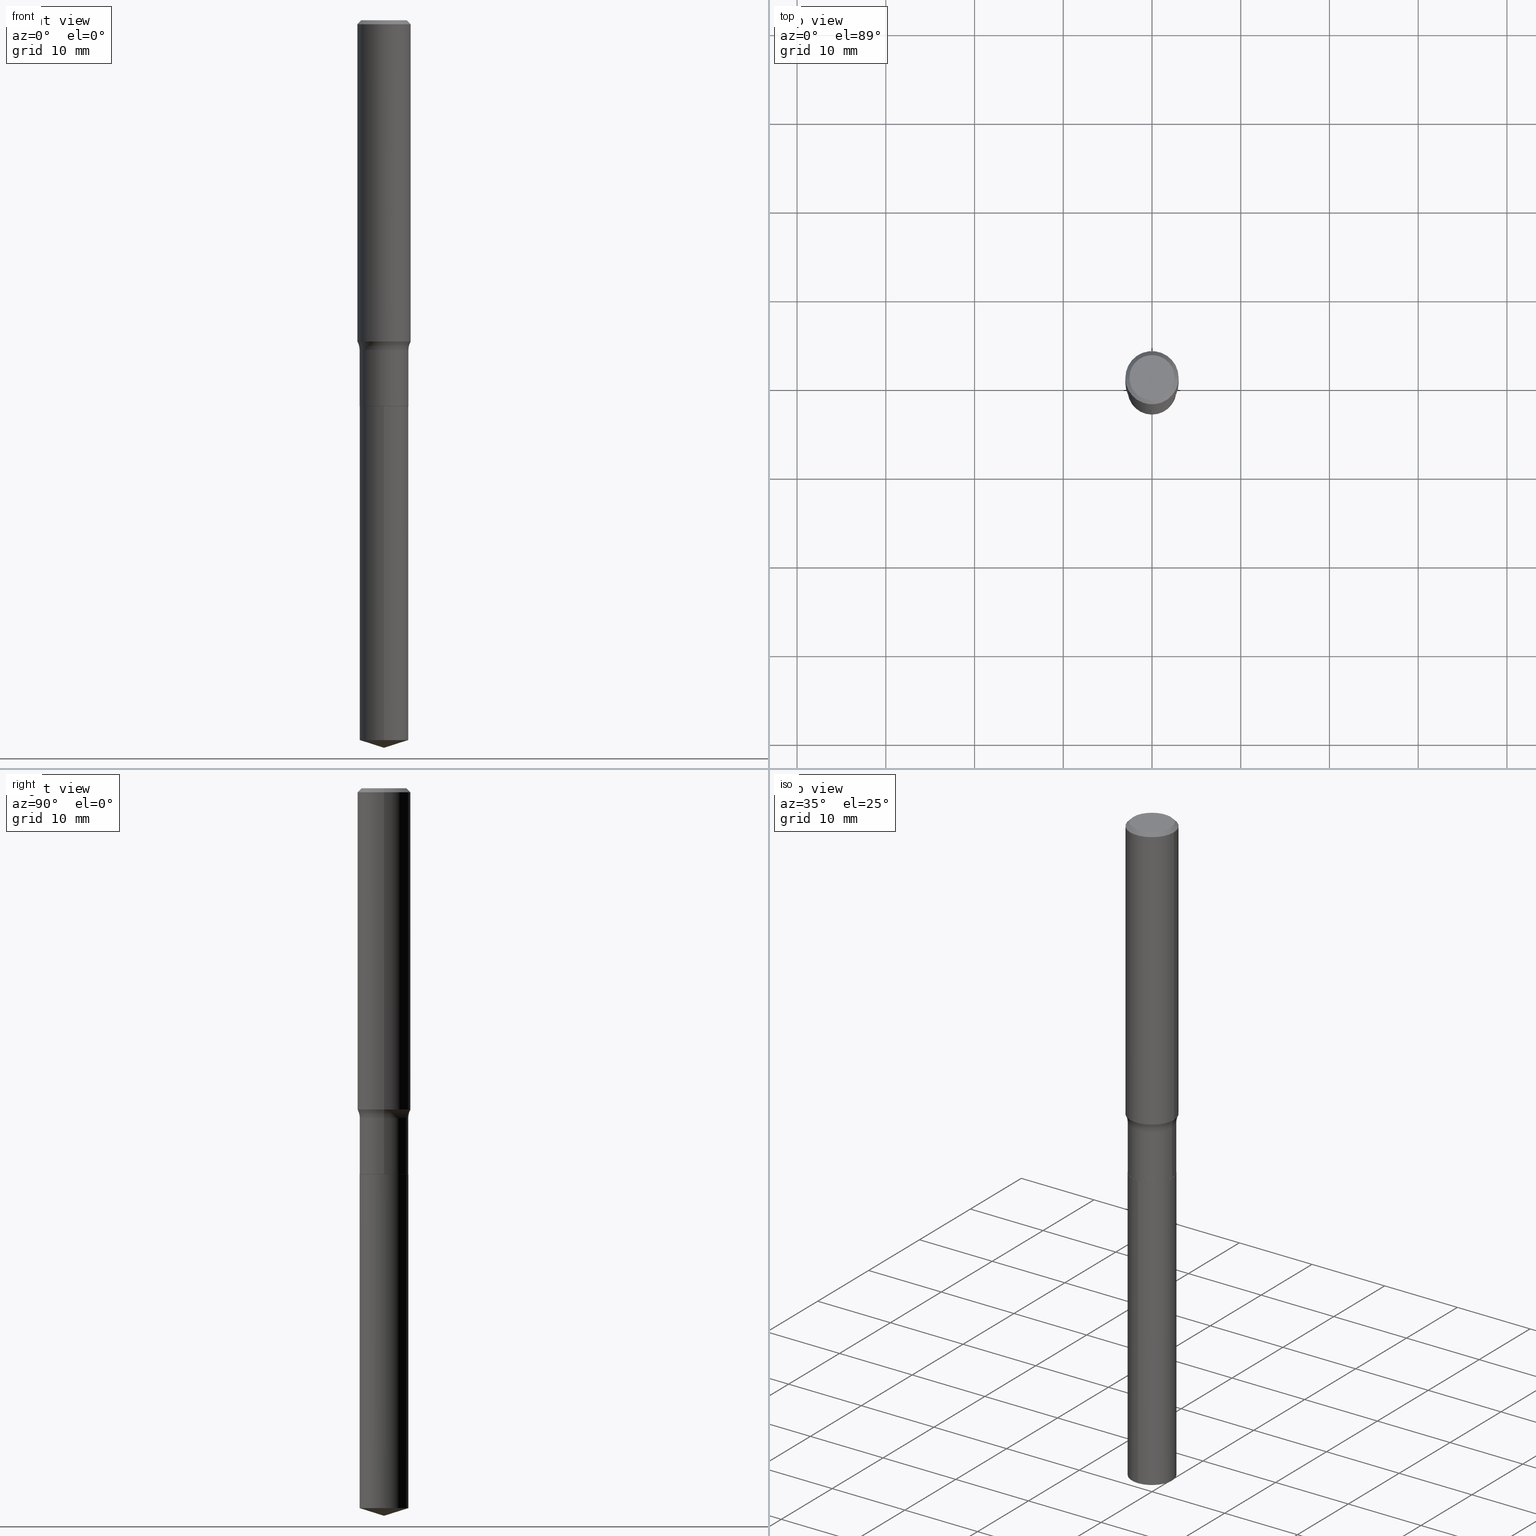
[diagram: canonical four-view strip — front | top / right | iso, engineering-drawing reading convention]
A machine part, canonical four-view strip (front | top / right | iso — engineering-drawing reading convention). The complete STEP part file that produces these views, byte-faithful:
ISO-10303-21;
HEADER;
FILE_DESCRIPTION (( 'STEP AP203' ),
    '1' );
FILE_NAME ('64126.STEP',
    '2024-04-19T15:16:53',
    ( '' ),
    ( '' ),
    'SwSTEP 2.0',
    'SolidWorks 2023',
    '' );
FILE_SCHEMA (( 'CONFIG_CONTROL_DESIGN' ));
ENDSEC;

DATA;
#1 = DIRECTION ( 'NONE',  ( -6.659769872151617100E-15, -0.9537169507482246011, 0.3007057995042806131 ) ) ;
#2 = FACE_OUTER_BOUND ( 'NONE', #188, .T. ) ;
#3 = CARTESIAN_POINT ( 'NONE',  ( 4.187865330592046870E-29, -5.979161792768887170E-15, -1.712500000000000133 ) ) ;
#4 = AXIS2_PLACEMENT_3D ( 'NONE', #20, #175, #138 ) ;
#5 = CC_DESIGN_APPROVAL ( #444, ( #358 ) ) ;
#6 = DIRECTION ( 'NONE',  ( -2.445468806185136877E-29, 3.491481338843145188E-15, 1.000000000000000000 ) ) ;
#7 = CC_DESIGN_PERSON_AND_ORGANIZATION_ASSIGNMENT ( #426, #421, ( #358 ) ) ;
#8 = ADVANCED_BREP_SHAPE_REPRESENTATION ( '64126', ( #59, #385, #286 ), #454 ) ;
#9 = ORIENTED_EDGE ( 'NONE', *, *, #132, .T. ) ;
#10 = ORIENTED_EDGE ( 'NONE', *, *, #183, .F. ) ;
#11 = ORIENTED_EDGE ( 'NONE', *, *, #423, .F. ) ;
#12 = COORDINATED_UNIVERSAL_TIME_OFFSET ( 5, 0, .BEHIND. ) ;
#13 = CARTESIAN_POINT ( 'NONE',  ( 7.894856259589702818E-29, -1.127133538207123625E-14, -3.228299999999999947 ) ) ;
#14 = CIRCLE ( 'NONE', #100, 0.1180999999999999966 ) ;
#15 = AXIS2_PLACEMENT_3D ( 'NONE', #34, #187, #227 ) ;
#16 = APPROVAL_PERSON_ORGANIZATION ( #51, #416, #21 ) ;
#17 = DIRECTION ( 'NONE',  ( 1.000000000000000000, -6.982962677686263555E-15, 0.000000000000000000 ) ) ;
#18 = CC_DESIGN_PERSON_AND_ORGANIZATION_ASSIGNMENT ( #271, #386, ( #419 ) ) ;
#19 =( NAMED_UNIT ( * ) SI_UNIT ( $, .STERADIAN. ) SOLID_ANGLE_UNIT ( ) );
#20 = CARTESIAN_POINT ( 'NONE',  ( 4.187865330592046870E-29, -5.979161792768887170E-15, -1.712500000000000133 ) ) ;
#21 = APPROVAL_ROLE ( '' ) ;
#22 = ORIENTED_EDGE ( 'NONE', *, *, #383, .T. ) ;
#23 = ADVANCED_FACE ( 'NONE', ( #465 ), #90, .T. ) ;
#24 = AXIS2_PLACEMENT_3D ( 'NONE', #110, #434, #56 ) ;
#25 = EDGE_CURVE ( 'NONE', #366, #220, #274, .T. ) ;
#26 = ORIENTED_EDGE ( 'NONE', *, *, #368, .T. ) ;
#27 = ORIENTED_EDGE ( 'NONE', *, *, #362, .T. ) ;
#28 = CARTESIAN_POINT ( 'NONE',  ( 0.1082499999999999712, -5.865688649256482338E-15, -1.463500000000000023 ) ) ;
#29 = DIRECTION ( 'NONE',  ( -2.445468806185136597E-29, 3.491481338843145583E-15, 1.000000000000000000 ) ) ;
#30 = AXIS2_PLACEMENT_3D ( 'NONE', #268, #409, #186 ) ;
#31 = ORIENTED_EDGE ( 'NONE', *, *, #137, .F. ) ;
#32 = COORDINATED_UNIVERSAL_TIME_OFFSET ( 5, 0, .BEHIND. ) ;
#33 = PLANE ( 'NONE',  #208 ) ;
#34 = CARTESIAN_POINT ( 'NONE',  ( 0.000000000000000000, 0.000000000000000000, 0.000000000000000000 ) ) ;
#35 = EDGE_CURVE ( 'NONE', #140, #96, #85, .T. ) ;
#36 = VECTOR ( 'NONE', #403, 39.37007874015748143 ) ;
#37 = CARTESIAN_POINT ( 'NONE',  ( 0.000000000000000000, 0.000000000000000000, 0.000000000000000000 ) ) ;
#38 = DIRECTION ( 'NONE',  ( -2.445468806185136597E-29, 3.491481338843145583E-15, 1.000000000000000000 ) ) ;
#39 = DIRECTION ( 'NONE',  ( -2.445468806185136597E-29, 3.491481338843145583E-15, 1.000000000000000000 ) ) ;
#40 = FACE_OUTER_BOUND ( 'NONE', #399, .T. ) ;
#41 = ADVANCED_FACE ( 'NONE', ( #238 ), #130, .T. ) ;
#42 = DIRECTION ( 'NONE',  ( 1.000000000000000000, -6.982962677686263555E-15, 0.000000000000000000 ) ) ;
#43 = PRODUCT_DEFINITION_SHAPE ( 'NONE', 'NONE',  #164 ) ;
#44 = FACE_OUTER_BOUND ( 'NONE', #296, .T. ) ;
#45 = AXIS2_PLACEMENT_3D ( 'NONE', #202, #48, #314 ) ;
#46 = VECTOR ( 'NONE', #393, 39.37007874015748143 ) ;
#47 = PERSON_AND_ORGANIZATION ( #254, #122 ) ;
#48 = DIRECTION ( 'NONE',  ( -2.445515057333488882E-29, 3.491415104566253051E-15, 1.000000000000000000 ) ) ;
#49 = APPLICATION_PROTOCOL_DEFINITION ( 'international standard', 'config_control_design', 1994, #328 ) ;
#50 = DIRECTION ( 'NONE',  ( -1.000000000000000000, 6.982962677686265922E-15, -4.876176775795935793E-29 ) ) ;
#51 = PERSON_AND_ORGANIZATION ( #254, #122 ) ;
#52 = ADVANCED_FACE ( 'NONE', ( #240 ), #168, .F. ) ;
#53 = CARTESIAN_POINT ( 'NONE',  ( 4.187865330592046870E-29, -5.979161792768887170E-15, -1.712500000000000133 ) ) ;
#54 = AXIS2_PLACEMENT_3D ( 'NONE', #295, #113, #181 ) ;
#55 = APPROVAL_DATE_TIME ( #176, #416 ) ;
#56 = DIRECTION ( 'NONE',  ( 1.000000000000000000, -6.982962677686268288E-15, 4.883557194083113462E-29 ) ) ;
#57 =( NAMED_UNIT ( * ) PLANE_ANGLE_UNIT ( ) SI_UNIT ( $, .RADIAN. ) );
#58 = ORIENTED_EDGE ( 'NONE', *, *, #491, .F. ) ;
#59 = MANIFOLD_SOLID_BREP ( 'Body-Move/Copy2[1]', #333 ) ;
#60 = EDGE_CURVE ( 'NONE', #94, #466, #343, .T. ) ;
#61 = ORIENTED_EDGE ( 'NONE', *, *, #84, .F. ) ;
#62 = ADVANCED_FACE ( 'NONE', ( #128 ), #157, .F. ) ;
#63 = ORIENTED_EDGE ( 'NONE', *, *, #308, .T. ) ;
#64 = ORIENTED_EDGE ( 'NONE', *, *, #114, .T. ) ;
#65 = SHAPE_DEFINITION_REPRESENTATION ( #43, #8 ) ;
#66 = AXIS2_PLACEMENT_3D ( 'NONE', #3, #160, #272 ) ;
#67 = AXIS2_PLACEMENT_3D ( 'NONE', #155, #418, #191 ) ;
#68 = ORIENTED_EDGE ( 'NONE', *, *, #60, .F. ) ;
#69 = ORIENTED_EDGE ( 'NONE', *, *, #369, .T. ) ;
#70 = DIRECTION ( 'NONE',  ( 2.445468806185136597E-29, -3.491481338843145583E-15, -1.000000000000000000 ) ) ;
#71 = CALENDAR_DATE ( 2024, 19, 4 ) ;
#72 = DIRECTION ( 'NONE',  ( 1.000000000000000000, -6.982962677686263555E-15, 0.000000000000000000 ) ) ;
#73 = CALENDAR_DATE ( 2024, 19, 4 ) ;
#74 = DIRECTION ( 'NONE',  ( -1.000000000000000000, 7.105427357601001859E-15, 0.000000000000000000 ) ) ;
#75 = AXIS2_PLACEMENT_3D ( 'NONE', #376, #79, #492 ) ;
#76 = ORIENTED_EDGE ( 'NONE', *, *, #478, .F. ) ;
#77 = CYLINDRICAL_SURFACE ( 'NONE', #15, 0.1082499999999999851 ) ;
#78 = CC_DESIGN_PERSON_AND_ORGANIZATION_ASSIGNMENT ( #47, #201, ( #358 ) ) ;
#79 = DIRECTION ( 'NONE',  ( -2.445468806185136597E-29, 3.491481338843145583E-15, 1.000000000000000000 ) ) ;
#80 = CARTESIAN_POINT ( 'NONE',  ( 0.1180999999999999966, -8.865394841523547570E-16, -0.01771500000000010913 ) ) ;
#81 = AXIS2_PLACEMENT_3D ( 'NONE', #367, #70, #252 ) ;
#82 = LOCAL_TIME ( 11, 16, 53.00000000000000000, #32 ) ;
#83 = CARTESIAN_POINT ( 'NONE',  ( 7.811308950451849995E-29, -1.115228299150602313E-14, -3.194168906103849626 ) ) ;
#84 = EDGE_CURVE ( 'NONE', #162, #96, #112, .T. ) ;
#85 = LINE ( 'NONE', #192, #152 ) ;
#86 = APPLICATION_CONTEXT ( 'configuration controlled 3d designs of mechanical parts and assemblies' ) ;
#87 = CYLINDRICAL_SURFACE ( 'NONE', #91, 0.1082499999999999851 ) ;
#88 = DIRECTION ( 'NONE',  ( 1.000000000000000000, -6.982962677686266711E-15, 4.875668750515086816E-29 ) ) ;
#89 = DIRECTION ( 'NONE',  ( -2.445468806185136877E-29, 3.491481338843145188E-15, 1.000000000000000000 ) ) ;
#90 = CYLINDRICAL_SURFACE ( 'NONE', #120, 0.1082499999999999990 ) ;
#91 = AXIS2_PLACEMENT_3D ( 'NONE', #37, #342, #233 ) ;
#92 = SECURITY_CLASSIFICATION ( '', '', #344 ) ;
#93 = CALENDAR_DATE ( 2024, 19, 4 ) ;
#94 = VERTEX_POINT ( 'NONE', #13 ) ;
#95 = ADVANCED_FACE ( 'NONE', ( #44 ), #270, .T. ) ;
#96 = VERTEX_POINT ( 'NONE', #420 ) ;
#97 = DIRECTION ( 'NONE',  ( 0.000000000000000000, 0.000000000000000000, 1.000000000000000000 ) ) ;
#98 = ORIENTED_EDGE ( 'NONE', *, *, #262, .T. ) ;
#99 = DIRECTION ( 'NONE',  ( -6.982962677686265922E-15, -1.000000000000000000, 3.500519750498790812E-15 ) ) ;
#100 = AXIS2_PLACEMENT_3D ( 'NONE', #199, #345, #422 ) ;
#101 = CIRCLE ( 'NONE', #480, 0.1082499999999999990 ) ;
#102 = APPROVAL_DATE_TIME ( #245, #444 ) ;
#103 = EDGE_CURVE ( 'NONE', #322, #417, #340, .T. ) ;
#104 = ORIENTED_EDGE ( 'NONE', *, *, #237, .T. ) ;
#105 = EDGE_LOOP ( 'NONE', ( #64, #250 ) ) ;
#106 = CARTESIAN_POINT ( 'NONE',  ( -0.1077499999999999986, -5.210902767813268719E-15, -1.712500000000000133 ) ) ;
#107 = DIRECTION ( 'NONE',  ( -2.445515057333488882E-29, 3.491415104566253051E-15, 1.000000000000000000 ) ) ;
#108 = ADVANCED_FACE ( 'NONE', ( #40 ), #488, .T. ) ;
#109 = ORIENTED_EDGE ( 'NONE', *, *, #25, .T. ) ;
#110 = CARTESIAN_POINT ( 'NONE',  ( 3.578943597851947764E-29, -5.109782939396944472E-15, -1.463500000000000023 ) ) ;
#111 = ORIENTED_EDGE ( 'NONE', *, *, #315, .F. ) ;
#112 = CIRCLE ( 'NONE', #474, 0.1082499999999999990 ) ;
#113 = DIRECTION ( 'NONE',  ( -2.445468806185136597E-29, 3.491481338843145583E-15, 1.000000000000000000 ) ) ;
#114 = EDGE_CURVE ( 'NONE', #395, #219, #437, .T. ) ;
#115 = ORIENTED_EDGE ( 'NONE', *, *, #288, .T. ) ;
#116 = LINE ( 'NONE', #487, #439 ) ;
#117 = LINE ( 'NONE', #196, #372 ) ;
#118 = ORIENTED_EDGE ( 'NONE', *, *, #103, .F. ) ;
#119 = DIRECTION ( 'NONE',  ( -6.982962677686265922E-15, -1.000000000000000000, 5.047294214622195629E-15 ) ) ;
#120 = AXIS2_PLACEMENT_3D ( 'NONE', #311, #462, #428 ) ;
#121 = CONICAL_SURFACE ( 'NONE', #139, 124.8659371009119781, 1.265363707695884576 ) ;
#122 = ORGANIZATION ( 'UNSPECIFIED', 'UNSPECIFIED', '' ) ;
#123 = CARTESIAN_POINT ( 'NONE',  ( 4.187865330592046870E-29, -5.979161792768887170E-15, -1.712500000000000133 ) ) ;
#124 = DIRECTION ( 'NONE',  ( 1.000000000000000000, -6.982962677686266711E-15, 4.876176775795936353E-29 ) ) ;
#125 = ORIENTED_EDGE ( 'NONE', *, *, #84, .T. ) ;
#126 = DIRECTION ( 'NONE',  ( -2.445468806185136597E-29, 3.491481338843145583E-15, 1.000000000000000000 ) ) ;
#127 = MECHANICAL_CONTEXT ( 'NONE', #86, 'mechanical' ) ;
#128 = FACE_OUTER_BOUND ( 'NONE', #105, .T. ) ;
#129 =( LENGTH_UNIT ( ) NAMED_UNIT ( * ) SI_UNIT ( $, .METRE. ) );
#130 = CYLINDRICAL_SURFACE ( 'NONE', #389, 0.1181000000000000799 ) ;
#131 = AXIS2_PLACEMENT_3D ( 'NONE', #53, #207, #17 ) ;
#132 = EDGE_CURVE ( 'NONE', #220, #366, #14, .T. ) ;
#133 = ORIENTED_EDGE ( 'NONE', *, *, #25, .F. ) ;
#134 = CARTESIAN_POINT ( 'NONE',  ( 0.000000000000000000, 0.000000000000000000, 0.000000000000000000 ) ) ;
#135 = CARTESIAN_POINT ( 'NONE',  ( -0.1082499999999999712, -4.774436984287896921E-15, -1.463500000000000023 ) ) ;
#136 = PERSON_AND_ORGANIZATION ( #254, #122 ) ;
#137 = EDGE_CURVE ( 'NONE', #470, #404, #291, .T. ) ;
#138 = DIRECTION ( 'NONE',  ( -6.982962677686265922E-15, -1.000000000000000000, 2.523647107311097814E-15 ) ) ;
#139 = AXIS2_PLACEMENT_3D ( 'NONE', #330, #230, #302 ) ;
#140 = VERTEX_POINT ( 'NONE', #244 ) ;
#141 = ORIENTED_EDGE ( 'NONE', *, *, #262, .F. ) ;
#142 = ORIENTED_EDGE ( 'NONE', *, *, #383, .F. ) ;
#143 = ADVANCED_FACE ( 'NONE', ( #226 ), #206, .F. ) ;
#144 = APPROVAL_STATUS ( 'not_yet_approved' ) ;
#145 = AXIS2_PLACEMENT_3D ( 'NONE', #306, #452, #50 ) ;
#146 = AXIS2_PLACEMENT_3D ( 'NONE', #222, #317, #184 ) ;
#147 = CYLINDRICAL_SURFACE ( 'NONE', #209, 0.1181000000000000799 ) ;
#148 = DIRECTION ( 'NONE',  ( -6.982962677686265922E-15, -1.000000000000000000, 5.047294214622195629E-15 ) ) ;
#149 = ORIENTED_EDGE ( 'NONE', *, *, #369, .F. ) ;
#150 = CARTESIAN_POINT ( 'NONE',  ( -0.1180999999999999966, -1.680429813214882523E-15, -0.01771500000000010913 ) ) ;
#151 = APPROVAL ( #144, 'UNSPECIFIED' ) ;
#152 = VECTOR ( 'NONE', #377, 39.37007874015748143 ) ;
#153 = DIRECTION ( 'NONE',  ( -2.445468806185136877E-29, 3.491481338843145188E-15, 1.000000000000000000 ) ) ;
#154 = CIRCLE ( 'NONE', #258, 0.1181000000000001632 ) ;
#155 = CARTESIAN_POINT ( 'NONE',  ( 0.1862499999999999711, -6.410359738116011173E-15, -1.463500000000000023 ) ) ;
#156 = FACE_OUTER_BOUND ( 'NONE', #396, .T. ) ;
#157 = PLANE ( 'NONE',  #145 ) ;
#158 = DIRECTION ( 'NONE',  ( -2.438088387897960049E-29, 3.491481338843145188E-15, 1.000000000000000000 ) ) ;
#159 = AXIS2_PLACEMENT_3D ( 'NONE', #171, #471, #297 ) ;
#160 = DIRECTION ( 'NONE',  ( -2.445468806185136597E-29, 3.491481338843145583E-15, 1.000000000000000000 ) ) ;
#161 = CARTESIAN_POINT ( 'NONE',  ( -0.1003850000000000020, 7.319105043583386689E-16, -1.229361689324571704E-17 ) ) ;
#162 = VERTEX_POINT ( 'NONE', #364 ) ;
#163 = PERSON_AND_ORGANIZATION ( #254, #122 ) ;
#164 = PRODUCT_DEFINITION ( 'UNKNOWN', '', #358, #354 ) ;
#165 = ORIENTED_EDGE ( 'NONE', *, *, #190, .F. ) ;
#166 = LINE ( 'NONE', #213, #293 ) ;
#167 = CARTESIAN_POINT ( 'NONE',  ( 4.332147990156996744E-31, -6.185159191760670395E-17, -0.01771500000000010913 ) ) ;
#168 = TOROIDAL_SURFACE ( 'NONE', #424, 0.1862499999999999711, 0.07799999999999995826 ) ;
#169 = CIRCLE ( 'NONE', #334, 0.1082499999999999990 ) ;
#170 = DIRECTION ( 'NONE',  ( 1.000000000000000000, -6.982962677686269077E-15, 0.000000000000000000 ) ) ;
#171 = CARTESIAN_POINT ( 'NONE',  ( 4.187865330592046870E-29, -5.979161792768887170E-15, -1.712500000000000133 ) ) ;
#172 = PERSON_AND_ORGANIZATION_ROLE ( 'creator' ) ;
#173 = ORIENTED_EDGE ( 'NONE', *, *, #200, .T. ) ;
#174 = EDGE_LOOP ( 'NONE', ( #11, #355, #407, #9 ) ) ;
#175 = DIRECTION ( 'NONE',  ( -2.445515057333488882E-29, 3.491415104566253051E-15, 1.000000000000000000 ) ) ;
#176 = DATE_AND_TIME ( #388, #259 ) ;
#177 = AXIS2_PLACEMENT_3D ( 'NONE', #430, #253, #74 ) ;
#178 = ADVANCED_FACE ( 'NONE', ( #256 ), #300, .F. ) ;
#179 = DIRECTION ( 'NONE',  ( -2.445468806185136597E-29, 3.491481338843145583E-15, 1.000000000000000000 ) ) ;
#180 = VERTEX_POINT ( 'NONE', #106 ) ;
#181 = DIRECTION ( 'NONE',  ( 1.000000000000000000, -6.982962677686269077E-15, 0.000000000000000000 ) ) ;
#182 = EDGE_LOOP ( 'NONE', ( #397, #27, #133, #76 ) ) ;
#183 = EDGE_CURVE ( 'NONE', #404, #470, #154, .T. ) ;
#184 = DIRECTION ( 'NONE',  ( 1.000000000000000000, -6.982962677686263555E-15, 0.000000000000000000 ) ) ;
#185 = ORIENTED_EDGE ( 'NONE', *, *, #423, .T. ) ;
#186 = DIRECTION ( 'NONE',  ( -1.000000000000000000, 6.982962677686266711E-15, 0.000000000000000000 ) ) ;
#187 = DIRECTION ( 'NONE',  ( -2.445468806185136597E-29, 3.491481338843145583E-15, 1.000000000000000000 ) ) ;
#188 = EDGE_LOOP ( 'NONE', ( #433, #485 ) ) ;
#189 = LOCAL_TIME ( 11, 16, 53.00000000000000000, #12 ) ;
#190 = EDGE_CURVE ( 'NONE', #404, #290, #365, .T. ) ;
#191 = DIRECTION ( 'NONE',  ( 1.000000000000000000, -6.982962677686261977E-15, 0.000000000000000000 ) ) ;
#192 = CARTESIAN_POINT ( 'NONE',  ( 7.691625114603501551E-16, 0.1082499999999940177, -1.712500000000000355 ) ) ;
#193 = ADVANCED_FACE ( 'NONE', ( #405 ), #425, .T. ) ;
#194 = CARTESIAN_POINT ( 'NONE',  ( 7.894857648660020838E-29, -1.127133538207123467E-14, -3.228299999999999947 ) ) ;
#195 = DIRECTION ( 'NONE',  ( -2.445468806185136597E-29, 3.491481338843145583E-15, 1.000000000000000000 ) ) ;
#196 = CARTESIAN_POINT ( 'NONE',  ( 0.1082499999999999851, -7.559057098595382610E-16, 5.278461359799099291E-30 ) ) ;
#197 = AXIS2_PLACEMENT_3D ( 'NONE', #167, #195, #236 ) ;
#198 = CONICAL_SURFACE ( 'NONE', #413, 0.1077499999999999986, 0.7853981633975507526 ) ;
#199 = CARTESIAN_POINT ( 'NONE',  ( 4.332147990156996744E-31, -6.185159191760670395E-17, -0.01771500000000010913 ) ) ;
#200 = EDGE_CURVE ( 'NONE', #180, #322, #432, .T. ) ;
#201 = PERSON_AND_ORGANIZATION_ROLE ( 'design_supplier' ) ;
#202 = CARTESIAN_POINT ( 'NONE',  ( 4.187865330592046870E-29, -5.979161792768887170E-15, -1.712500000000000133 ) ) ;
#203 = APPROVAL_STATUS ( 'not_yet_approved' ) ;
#204 = DIRECTION ( 'NONE',  ( -2.445515057333488882E-29, 3.491415104566253051E-15, 1.000000000000000000 ) ) ;
#205 = CARTESIAN_POINT ( 'NONE',  ( 3.578943597851947764E-29, -5.109782939396944472E-15, -1.463500000000000023 ) ) ;
#206 = TOROIDAL_SURFACE ( 'NONE', #24, 0.1862499999999999711, 0.07799999999999995826 ) ;
#207 = DIRECTION ( 'NONE',  ( -2.445468806185136597E-29, 3.491481338843145583E-15, 1.000000000000000000 ) ) ;
#208 = AXIS2_PLACEMENT_3D ( 'NONE', #335, #158, #228 ) ;
#209 = AXIS2_PLACEMENT_3D ( 'NONE', #260, #374, #124 ) ;
#210 = CALENDAR_DATE ( 2024, 19, 4 ) ;
#211 = ORIENTED_EDGE ( 'NONE', *, *, #232, .F. ) ;
#212 = CARTESIAN_POINT ( 'NONE',  ( 4.186642596188954069E-29, -5.977416052099465667E-15, -1.712000000000000188 ) ) ;
#213 = CARTESIAN_POINT ( 'NONE',  ( 0.1181000000000000799, -8.246878922347486570E-16, 5.758764772215004644E-30 ) ) ;
#214 = EDGE_LOOP ( 'NONE', ( #363, #104, #69, #141 ) ) ;
#215 = AXIS2_PLACEMENT_3D ( 'NONE', #329, #284, #99 ) ;
#216 = CC_DESIGN_APPROVAL ( #151, ( #92 ) ) ;
#217 = ADVANCED_FACE ( 'NONE', ( #350 ), #349, .T. ) ;
#218 = CARTESIAN_POINT ( 'NONE',  ( 4.186642596188954069E-29, -5.977416052099465667E-15, -1.712000000000000188 ) ) ;
#219 = VERTEX_POINT ( 'NONE', #486 ) ;
#220 = VERTEX_POINT ( 'NONE', #150 ) ;
#221 = APPROVAL_DATE_TIME ( #482, #151 ) ;
#222 = CARTESIAN_POINT ( 'NONE',  ( 4.187865330592046870E-29, -5.979161792768887170E-15, -1.712500000000000133 ) ) ;
#223 = ORIENTED_EDGE ( 'NONE', *, *, #224, .F. ) ;
#224 = EDGE_CURVE ( 'NONE', #180, #246, #446, .T. ) ;
#225 = DATE_AND_TIME ( #73, #189 ) ;
#226 = FACE_OUTER_BOUND ( 'NONE', #445, .T. ) ;
#227 = DIRECTION ( 'NONE',  ( 1.000000000000000000, -6.982962677686266711E-15, 4.876176775795935232E-29 ) ) ;
#228 = DIRECTION ( 'NONE',  ( 1.000000000000000000, -6.982962677686265922E-15, 4.876176775795935793E-29 ) ) ;
#229 = AXIS2_PLACEMENT_3D ( 'NONE', #309, #126, #88 ) ;
#230 = DIRECTION ( 'NONE',  ( -2.445515057333488882E-29, 3.491415104566253051E-15, 1.000000000000000000 ) ) ;
#231 = CC_DESIGN_APPROVAL ( #416, ( #164 ) ) ;
#232 = EDGE_CURVE ( 'NONE', #96, #162, #275, .T. ) ;
#233 = DIRECTION ( 'NONE',  ( 1.000000000000000000, -6.982962677686266711E-15, 4.876176775795935232E-29 ) ) ;
#234 = DIRECTION ( 'NONE',  ( -6.982962677686265922E-15, -1.000000000000000000, 2.523647107311097814E-15 ) ) ;
#235 = LINE ( 'NONE', #337, #321 ) ;
#236 = DIRECTION ( 'NONE',  ( 1.000000000000000000, -6.982962677686266711E-15, 0.000000000000000000 ) ) ;
#237 = EDGE_CURVE ( 'NONE', #246, #417, #379, .T. ) ;
#238 = FACE_OUTER_BOUND ( 'NONE', #442, .T. ) ;
#239 = PERSON_AND_ORGANIZATION_ROLE ( 'classification_officer' ) ;
#240 = FACE_OUTER_BOUND ( 'NONE', #278, .T. ) ;
#241 = CARTESIAN_POINT ( 'NONE',  ( 0.000000000000000000, 0.000000000000000000, 0.000000000000000000 ) ) ;
#242 = APPROVAL_STATUS ( 'not_yet_approved' ) ;
#243 = ORIENTED_EDGE ( 'NONE', *, *, #35, .T. ) ;
#244 = CARTESIAN_POINT ( 'NONE',  ( 7.691625114603868372E-16, 0.1082499999999888829, -3.194168906103850070 ) ) ;
#245 = DATE_AND_TIME ( #93, #276 ) ;
#246 = VERTEX_POINT ( 'NONE', #318 ) ;
#247 = ORIENTED_EDGE ( 'NONE', *, *, #237, .F. ) ;
#248 = EDGE_CURVE ( 'NONE', #466, #140, #101, .T. ) ;
#249 = EDGE_LOOP ( 'NONE', ( #111, #185, #109, #289 ) ) ;
#250 = ORIENTED_EDGE ( 'NONE', *, *, #315, .T. ) ;
#251 = CONICAL_SURFACE ( 'NONE', #30, 0.1180999999999999966, 0.7853981633974456145 ) ;
#252 = DIRECTION ( 'NONE',  ( -1.000000000000000000, 6.982962677686266711E-15, 0.000000000000000000 ) ) ;
#253 = DIRECTION ( 'NONE',  ( 7.105427357601001859E-15, 1.000000000000000000, -3.491481338843145583E-15 ) ) ;
#254 = PERSON ( 'UNSPECIFIED', 'UNSPECIFIED', 'UNSPECIFIED', ('UNSPECIFIED'), ('UNSPECIFIED'), ('UNSPECIFIED') ) ;
#255 = EDGE_LOOP ( 'NONE', ( #323, #477, #58, #149 ) ) ;
#256 = FACE_OUTER_BOUND ( 'NONE', #336, .T. ) ;
#257 = EDGE_LOOP ( 'NONE', ( #267, #402, #142 ) ) ;
#258 = AXIS2_PLACEMENT_3D ( 'NONE', #281, #179, #352 ) ;
#259 = LOCAL_TIME ( 11, 16, 53.00000000000000000, #346 ) ;
#260 = CARTESIAN_POINT ( 'NONE',  ( 0.000000000000000000, 0.000000000000000000, 0.000000000000000000 ) ) ;
#261 = LINE ( 'NONE', #194, #463 ) ;
#262 = EDGE_CURVE ( 'NONE', #290, #292, #264, .T. ) ;
#263 = LINE ( 'NONE', #415, #398 ) ;
#264 = CIRCLE ( 'NONE', #54, 0.1082499999999999712 ) ;
#265 = DIRECTION ( 'NONE',  ( -0.7071067811865455743, 2.468850131082236945E-15, -0.7071067811865493491 ) ) ;
#266 = ORIENTED_EDGE ( 'NONE', *, *, #190, .T. ) ;
#267 = ORIENTED_EDGE ( 'NONE', *, *, #308, .F. ) ;
#268 = CARTESIAN_POINT ( 'NONE',  ( 4.332147990156996744E-31, -6.185159191760670395E-17, -0.01771500000000010913 ) ) ;
#269 = EDGE_CURVE ( 'NONE', #417, #246, #301, .T. ) ;
#270 = CYLINDRICAL_SURFACE ( 'NONE', #45, 0.1082499999999999990 ) ;
#271 = PERSON_AND_ORGANIZATION ( #254, #122 ) ;
#272 = DIRECTION ( 'NONE',  ( 1.000000000000000000, -6.982962677686263555E-15, 0.000000000000000000 ) ) ;
#273 = PERSON_AND_ORGANIZATION ( #254, #122 ) ;
#274 = CIRCLE ( 'NONE', #197, 0.1180999999999999966 ) ;
#275 = CIRCLE ( 'NONE', #4, 0.1082499999999999990 ) ;
#276 = LOCAL_TIME ( 11, 16, 53.00000000000000000, #431 ) ;
#277 = DIRECTION ( 'NONE',  ( -2.445468806185136597E-29, 3.491481338843145583E-15, 1.000000000000000000 ) ) ;
#278 = EDGE_LOOP ( 'NONE', ( #165, #31, #26, #476 ) ) ;
#279 = EDGE_CURVE ( 'NONE', #466, #162, #361, .T. ) ;
#280 = ORIENTED_EDGE ( 'NONE', *, *, #362, .F. ) ;
#281 = CARTESIAN_POINT ( 'NONE',  ( 3.486158196102023877E-29, -4.977309976377518003E-15, -1.425558235412674790 ) ) ;
#282 = ORIENTED_EDGE ( 'NONE', *, *, #248, .F. ) ;
#283 = APPROVAL_ROLE ( '' ) ;
#284 = DIRECTION ( 'NONE',  ( -2.445515057333488882E-29, 3.491415104566253051E-15, 1.000000000000000000 ) ) ;
#285 = CIRCLE ( 'NONE', #131, 0.1077499999999999986 ) ;
#286 = AXIS2_PLACEMENT_3D ( 'NONE', #134, #97, #382 ) ;
#287 = ORIENTED_EDGE ( 'NONE', *, *, #35, .F. ) ;
#288 = EDGE_CURVE ( 'NONE', #322, #180, #285, .T. ) ;
#289 = ORIENTED_EDGE ( 'NONE', *, *, #401, .F. ) ;
#290 = VERTEX_POINT ( 'NONE', #135 ) ;
#291 = CIRCLE ( 'NONE', #412, 0.1181000000000001632 ) ;
#292 = VERTEX_POINT ( 'NONE', #28 ) ;
#293 = VECTOR ( 'NONE', #89, 39.37007874015748143 ) ;
#294 = LOCAL_TIME ( 11, 16, 53.00000000000000000, #319 ) ;
#295 = CARTESIAN_POINT ( 'NONE',  ( 3.578943597851947764E-29, -5.109782939396944472E-15, -1.463500000000000023 ) ) ;
#296 = EDGE_LOOP ( 'NONE', ( #287, #22, #435, #211 ) ) ;
#297 = DIRECTION ( 'NONE',  ( 6.982962677686265922E-15, 1.000000000000000000, -3.491415104566253051E-15 ) ) ;
#298 = UNCERTAINTY_MEASURE_WITH_UNIT (LENGTH_MEASURE( 1.000000000000000082E-05 ), #316, 'distance_accuracy_value', 'NONE');
#299 = ORIENTED_EDGE ( 'NONE', *, *, #132, .F. ) ;
#300 = PLANE ( 'NONE',  #159 ) ;
#301 = CIRCLE ( 'NONE', #313, 0.1082499999999999990 ) ;
#302 = DIRECTION ( 'NONE',  ( -6.982962677686265922E-15, -1.000000000000000000, 3.500519750498790812E-15 ) ) ;
#303 = ADVANCED_FACE ( 'NONE', ( #325 ), #147, .T. ) ;
#304 = CARTESIAN_POINT ( 'NONE',  ( 0.1082499999999999990, -6.733321761959004322E-15, -1.712000000000000188 ) ) ;
#305 = DIRECTION ( 'NONE',  ( -2.445468806185136877E-29, 3.491481338843145188E-15, 1.000000000000000000 ) ) ;
#306 = CARTESIAN_POINT ( 'NONE',  ( 1.503182831380539065E-46, -2.146146698481838919E-32, -6.146808446620353272E-18 ) ) ;
#307 = LINE ( 'NONE', #448, #341 ) ;
#308 = EDGE_CURVE ( 'NONE', #94, #140, #261, .T. ) ;
#309 = CARTESIAN_POINT ( 'NONE',  ( 3.006365662761078129E-46, -4.292293396963677838E-32, -1.229361689324070654E-17 ) ) ;
#310 = CARTESIAN_POINT ( 'NONE',  ( 0.1077499999999999986, -6.731576021289582030E-15, -1.712500000000000133 ) ) ;
#311 = CARTESIAN_POINT ( 'NONE',  ( 4.187865330592046870E-29, -5.979161792768887170E-15, -1.712500000000000133 ) ) ;
#312 = LENGTH_MEASURE_WITH_UNIT ( LENGTH_MEASURE( 0.02539999999999999897 ), #129 );
#313 = AXIS2_PLACEMENT_3D ( 'NONE', #218, #443, #327 ) ;
#314 = DIRECTION ( 'NONE',  ( -6.982962677686265922E-15, -1.000000000000000000, 2.523647107311097814E-15 ) ) ;
#315 = EDGE_CURVE ( 'NONE', #219, #395, #489, .T. ) ;
#316 =( CONVERSION_BASED_UNIT ( 'INCH', #312 ) LENGTH_UNIT ( ) NAMED_UNIT ( #429 ) );
#317 = DIRECTION ( 'NONE',  ( -2.445468806185136597E-29, 3.491481338843145583E-15, 1.000000000000000000 ) ) ;
#318 = CARTESIAN_POINT ( 'NONE',  ( -0.1082499999999999990, -4.774436984287896921E-15, -1.712000000000000188 ) ) ;
#319 = COORDINATED_UNIVERSAL_TIME_OFFSET ( 5, 0, .BEHIND. ) ;
#320 = CC_DESIGN_DATE_AND_TIME_ASSIGNMENT ( #225, #473, ( #92 ) ) ;
#321 = VECTOR ( 'NONE', #153, 39.37007874015748143 ) ;
#322 = VERTEX_POINT ( 'NONE', #310 ) ;
#323 = ORIENTED_EDGE ( 'NONE', *, *, #269, .T. ) ;
#324 = ORIENTED_EDGE ( 'NONE', *, *, #368, .F. ) ;
#325 = FACE_OUTER_BOUND ( 'NONE', #182, .T. ) ;
#326 = CIRCLE ( 'NONE', #390, 0.1082499999999999712 ) ;
#327 = DIRECTION ( 'NONE',  ( 1.000000000000000000, -6.982962677686267499E-15, 0.000000000000000000 ) ) ;
#328 = APPLICATION_CONTEXT ( 'configuration controlled 3d designs of mechanical parts and assemblies' ) ;
#329 = CARTESIAN_POINT ( 'NONE',  ( -8.838534331296205196E-28, 1.261858387730781286E-13, 36.14177874015747705 ) ) ;
#330 = CARTESIAN_POINT ( 'NONE',  ( -8.838534331296205196E-28, 1.261858387730781286E-13, 36.14177874015747705 ) ) ;
#331 = ADVANCED_FACE ( 'NONE', ( #410 ), #87, .T. ) ;
#332 = ADVANCED_FACE ( 'NONE', ( #2 ), #33, .F. ) ;
#333 = CLOSED_SHELL ( 'NONE', ( #23, #217, #459, #95, #178 ) ) ;
#334 = AXIS2_PLACEMENT_3D ( 'NONE', #83, #451, #119 ) ;
#335 = CARTESIAN_POINT ( 'NONE',  ( 4.187865330592046870E-29, -5.979161792768887170E-15, -1.712500000000000133 ) ) ;
#336 = EDGE_LOOP ( 'NONE', ( #125, #455 ) ) ;
#337 = CARTESIAN_POINT ( 'NONE',  ( -0.1082499999999999851, 7.691625114603083455E-16, -5.324747235200934608E-30 ) ) ;
#338 = CARTESIAN_POINT ( 'NONE',  ( 7.894697849406596795E-29, -1.127156223446959288E-14, -3.228299999999999947 ) ) ;
#339 = FACE_OUTER_BOUND ( 'NONE', #174, .T. ) ;
#340 = LINE ( 'NONE', #381, #378 ) ;
#341 = VECTOR ( 'NONE', #6, 39.37007874015748143 ) ;
#342 = DIRECTION ( 'NONE',  ( -2.445468806185136597E-29, 3.491481338843145583E-15, 1.000000000000000000 ) ) ;
#343 = LINE ( 'NONE', #338, #453 ) ;
#344 = SECURITY_CLASSIFICATION_LEVEL ( 'unclassified' ) ;
#345 = DIRECTION ( 'NONE',  ( -2.445468806185136597E-29, 3.491481338843145583E-15, 1.000000000000000000 ) ) ;
#346 = COORDINATED_UNIVERSAL_TIME_OFFSET ( 5, 0, .BEHIND. ) ;
#347 = EDGE_CURVE ( 'NONE', #246, #290, #235, .T. ) ;
#348 = ORIENTED_EDGE ( 'NONE', *, *, #103, .T. ) ;
#349 = CONICAL_SURFACE ( 'NONE', #215, 124.8659371009119781, 1.265363707695884576 ) ;
#350 = FACE_OUTER_BOUND ( 'NONE', #467, .T. ) ;
#351 = DATE_AND_TIME ( #210, #294 ) ;
#352 = DIRECTION ( 'NONE',  ( 1.000000000000000000, -6.982962677686263555E-15, 0.000000000000000000 ) ) ;
#353 = ADVANCED_FACE ( 'NONE', ( #156 ), #198, .T. ) ;
#354 = DESIGN_CONTEXT ( 'detailed design', #328, 'design' ) ;
#355 = ORIENTED_EDGE ( 'NONE', *, *, #114, .F. ) ;
#356 = PERSON_AND_ORGANIZATION ( #254, #122 ) ;
#357 = CIRCLE ( 'NONE', #67, 0.07799999999999995826 ) ;
#358 = PRODUCT_DEFINITION_FORMATION_WITH_SPECIFIED_SOURCE ( 'ANY', '', #419, .NOT_KNOWN. ) ;
#359 = ORIENTED_EDGE ( 'NONE', *, *, #478, .T. ) ;
#360 = EDGE_LOOP ( 'NONE', ( #481, #243, #61, #391 ) ) ;
#361 = LINE ( 'NONE', #387, #36 ) ;
#362 = EDGE_CURVE ( 'NONE', #404, #220, #307, .T. ) ;
#363 = ORIENTED_EDGE ( 'NONE', *, *, #347, .F. ) ;
#364 = CARTESIAN_POINT ( 'NONE',  ( -7.559057098594963527E-16, -0.1082500000000059803, -1.712499999999999911 ) ) ;
#365 = CIRCLE ( 'NONE', #177, 0.07799999999999995826 ) ;
#366 = VERTEX_POINT ( 'NONE', #80 ) ;
#367 = CARTESIAN_POINT ( 'NONE',  ( 4.332147990156996744E-31, -6.185159191760670395E-17, -0.01771500000000010913 ) ) ;
#368 = EDGE_CURVE ( 'NONE', #470, #292, #357, .T. ) ;
#369 = EDGE_CURVE ( 'NONE', #417, #292, #117, .T. ) ;
#370 = FACE_OUTER_BOUND ( 'NONE', #257, .T. ) ;
#371 = FACE_OUTER_BOUND ( 'NONE', #214, .T. ) ;
#372 = VECTOR ( 'NONE', #305, 39.37007874015748143 ) ;
#373 = DIRECTION ( 'NONE',  ( 6.776566513254242360E-15, 0.9537169507482265995, 0.3007057995042739518 ) ) ;
#374 = DIRECTION ( 'NONE',  ( -2.445468806185136597E-29, 3.491481338843145583E-15, 1.000000000000000000 ) ) ;
#375 = DIRECTION ( 'NONE',  ( 0.7071067811866199593, -2.468850131083015945E-15, 0.7071067811864750752 ) ) ;
#376 = CARTESIAN_POINT ( 'NONE',  ( 3.006365662761078129E-46, -4.292293396963677838E-32, -1.229361689324070654E-17 ) ) ;
#377 = DIRECTION ( 'NONE',  ( -2.445515057333488882E-29, 3.491415104566253051E-15, 1.000000000000000000 ) ) ;
#378 = VECTOR ( 'NONE', #375, 39.37007874015748143 ) ;
#379 = CIRCLE ( 'NONE', #447, 0.1082499999999999990 ) ;
#380 = APPLICATION_PROTOCOL_DEFINITION ( 'international standard', 'config_control_design', 1994, #86 ) ;
#381 = CARTESIAN_POINT ( 'NONE',  ( 0.1077499999999999986, -6.731576021289582030E-15, -1.712500000000000133 ) ) ;
#382 = DIRECTION ( 'NONE',  ( 1.000000000000000000, 0.000000000000000000, 0.000000000000000000 ) ) ;
#383 = EDGE_CURVE ( 'NONE', #140, #466, #169, .T. ) ;
#384 = DIRECTION ( 'NONE',  ( 1.000000000000000000, -6.982962677686268288E-15, 4.883557194083113462E-29 ) ) ;
#385 = MANIFOLD_SOLID_BREP ( 'Body-Move/Copy2[2]', #406 ) ;
#386 = PERSON_AND_ORGANIZATION_ROLE ( 'design_owner' ) ;
#387 = CARTESIAN_POINT ( 'NONE',  ( -7.559057098594963527E-16, -0.1082500000000059803, -1.712499999999999911 ) ) ;
#388 = CALENDAR_DATE ( 2024, 19, 4 ) ;
#389 = AXIS2_PLACEMENT_3D ( 'NONE', #241, #277, #427 ) ;
#390 = AXIS2_PLACEMENT_3D ( 'NONE', #205, #464, #170 ) ;
#391 = ORIENTED_EDGE ( 'NONE', *, *, #279, .F. ) ;
#392 = APPROVAL_PERSON_ORGANIZATION ( #356, #151, #440 ) ;
#393 = DIRECTION ( 'NONE',  ( -0.7071067811866199593, 7.493145998870616062E-15, 0.7071067811864750752 ) ) ;
#394 = CC_DESIGN_DATE_AND_TIME_ASSIGNMENT ( #351, #469, ( #164 ) ) ;
#395 = VERTEX_POINT ( 'NONE', #161 ) ;
#396 = EDGE_LOOP ( 'NONE', ( #115, #438, #472, #118 ) ) ;
#397 = ORIENTED_EDGE ( 'NONE', *, *, #137, .T. ) ;
#398 = VECTOR ( 'NONE', #458, 39.37007874015748854 ) ;
#399 = EDGE_LOOP ( 'NONE', ( #223, #173, #348, #247 ) ) ;
#400 = CARTESIAN_POINT ( 'NONE',  ( 7.811308950451849995E-29, -1.115228299150602313E-14, -3.194168906103849626 ) ) ;
#401 = EDGE_CURVE ( 'NONE', #395, #220, #116, .T. ) ;
#402 = ORIENTED_EDGE ( 'NONE', *, *, #60, .T. ) ;
#403 = DIRECTION ( 'NONE',  ( -2.445515057333488882E-29, 3.491415104566253051E-15, 1.000000000000000000 ) ) ;
#404 = VERTEX_POINT ( 'NONE', #456 ) ;
#405 = FACE_OUTER_BOUND ( 'NONE', #249, .T. ) ;
#406 = CLOSED_SHELL ( 'NONE', ( #353, #193, #303, #143, #331, #450, #52, #41, #436, #62, #332, #108 ) ) ;
#407 = ORIENTED_EDGE ( 'NONE', *, *, #401, .T. ) ;
#408 = CC_DESIGN_PERSON_AND_ORGANIZATION_ASSIGNMENT ( #163, #239, ( #92 ) ) ;
#409 = DIRECTION ( 'NONE',  ( 2.445468806185136597E-29, -3.491481338843145583E-15, -1.000000000000000000 ) ) ;
#410 = FACE_OUTER_BOUND ( 'NONE', #255, .T. ) ;
#411 = CARTESIAN_POINT ( 'NONE',  ( 0.1181000000000001493, -5.801997868612266266E-15, -1.425558235412674790 ) ) ;
#412 = AXIS2_PLACEMENT_3D ( 'NONE', #441, #484, #72 ) ;
#413 = AXIS2_PLACEMENT_3D ( 'NONE', #449, #39, #42 ) ;
#414 = CC_DESIGN_SECURITY_CLASSIFICATION ( #92, ( #358 ) ) ;
#415 = CARTESIAN_POINT ( 'NONE',  ( 0.1180999999999999966, -8.720764054544245267E-16, -0.01771500000000010913 ) ) ;
#416 = APPROVAL ( #242, 'UNSPECIFIED' ) ;
#417 = VERTEX_POINT ( 'NONE', #304 ) ;
#418 = DIRECTION ( 'NONE',  ( -6.982962677686266711E-15, -1.000000000000000000, 3.491481338843145583E-15 ) ) ;
#419 = PRODUCT ( '64126', '64126', '', ( #127 ) ) ;
#420 = CARTESIAN_POINT ( 'NONE',  ( 7.691625114603868372E-16, 0.1082499999999940177, -1.712500000000000355 ) ) ;
#421 = PERSON_AND_ORGANIZATION_ROLE ( 'creator' ) ;
#422 = DIRECTION ( 'NONE',  ( 1.000000000000000000, -6.982962677686266711E-15, 0.000000000000000000 ) ) ;
#423 = EDGE_CURVE ( 'NONE', #219, #366, #263, .T. ) ;
#424 = AXIS2_PLACEMENT_3D ( 'NONE', #461, #38, #384 ) ;
#425 = CONICAL_SURFACE ( 'NONE', #81, 0.1180999999999999966, 0.7853981633974456145 ) ;
#426 = PERSON_AND_ORGANIZATION ( #254, #122 ) ;
#427 = DIRECTION ( 'NONE',  ( 1.000000000000000000, -6.982962677686266711E-15, 4.876176775795936353E-29 ) ) ;
#428 = DIRECTION ( 'NONE',  ( -6.982962677686265922E-15, -1.000000000000000000, 2.523647107311097814E-15 ) ) ;
#429 = DIMENSIONAL_EXPONENTS ( 1.000000000000000000, 0.000000000000000000, 0.000000000000000000, 0.000000000000000000, 0.000000000000000000, 0.000000000000000000, 0.000000000000000000 ) ;
#430 = CARTESIAN_POINT ( 'NONE',  ( -0.1862499999999999711, -3.786397094043757686E-15, -1.463500000000000023 ) ) ;
#431 = COORDINATED_UNIVERSAL_TIME_OFFSET ( 5, 0, .BEHIND. ) ;
#432 = CIRCLE ( 'NONE', #146, 0.1077499999999999986 ) ;
#433 = ORIENTED_EDGE ( 'NONE', *, *, #288, .F. ) ;
#434 = DIRECTION ( 'NONE',  ( -2.445468806185136597E-29, 3.491481338843145583E-15, 1.000000000000000000 ) ) ;
#435 = ORIENTED_EDGE ( 'NONE', *, *, #279, .T. ) ;
#436 = ADVANCED_FACE ( 'NONE', ( #339 ), #251, .T. ) ;
#437 = CIRCLE ( 'NONE', #229, 0.1003850000000000020 ) ;
#438 = ORIENTED_EDGE ( 'NONE', *, *, #224, .T. ) ;
#439 = VECTOR ( 'NONE', #265, 39.37007874015748854 ) ;
#440 = APPROVAL_ROLE ( '' ) ;
#441 = CARTESIAN_POINT ( 'NONE',  ( 3.486158196102023877E-29, -4.977309976377518003E-15, -1.425558235412674790 ) ) ;
#442 = EDGE_LOOP ( 'NONE', ( #280, #457, #359, #299 ) ) ;
#443 = DIRECTION ( 'NONE',  ( -2.445468806185136597E-29, 3.491481338843145583E-15, 1.000000000000000000 ) ) ;
#444 = APPROVAL ( #203, 'UNSPECIFIED' ) ;
#445 = EDGE_LOOP ( 'NONE', ( #10, #266, #98, #324 ) ) ;
#446 = LINE ( 'NONE', #479, #46 ) ;
#447 = AXIS2_PLACEMENT_3D ( 'NONE', #212, #29, #468 ) ;
#448 = CARTESIAN_POINT ( 'NONE',  ( -0.1181000000000000799, 8.391509709326788873E-16, -5.809262341591047988E-30 ) ) ;
#449 = CARTESIAN_POINT ( 'NONE',  ( 4.187865330592046870E-29, -5.979161792768887170E-15, -1.712500000000000133 ) ) ;
#450 = ADVANCED_FACE ( 'NONE', ( #371 ), #77, .T. ) ;
#451 = DIRECTION ( 'NONE',  ( -2.445515057333488882E-29, 3.491415104566253051E-15, 1.000000000000000000 ) ) ;
#452 = DIRECTION ( 'NONE',  ( 2.438088387897960049E-29, -3.491481338843145188E-15, -1.000000000000000000 ) ) ;
#453 = VECTOR ( 'NONE', #1, 39.37007874015748143 ) ;
#454 =( GEOMETRIC_REPRESENTATION_CONTEXT ( 3 ) GLOBAL_UNCERTAINTY_ASSIGNED_CONTEXT ( ( #298 ) ) GLOBAL_UNIT_ASSIGNED_CONTEXT ( ( #316, #57, #19 ) ) REPRESENTATION_CONTEXT ( 'NONE', 'WORKASPACE' ) );
#455 = ORIENTED_EDGE ( 'NONE', *, *, #232, .T. ) ;
#456 = CARTESIAN_POINT ( 'NONE',  ( -0.1181000000000001493, -4.138159005444838228E-15, -1.425558235412674790 ) ) ;
#457 = ORIENTED_EDGE ( 'NONE', *, *, #183, .T. ) ;
#458 = DIRECTION ( 'NONE',  ( 0.7071067811865455743, -7.319954787623248157E-15, -0.7071067811865493491 ) ) ;
#459 = ADVANCED_FACE ( 'NONE', ( #370 ), #121, .T. ) ;
#460 = PRODUCT_RELATED_PRODUCT_CATEGORY ( 'detail', '', ( #419 ) ) ;
#461 = CARTESIAN_POINT ( 'NONE',  ( 3.578943597851947764E-29, -5.109782939396944472E-15, -1.463500000000000023 ) ) ;
#462 = DIRECTION ( 'NONE',  ( -2.445515057333488882E-29, 3.491415104566253051E-15, 1.000000000000000000 ) ) ;
#463 = VECTOR ( 'NONE', #373, 39.37007874015748854 ) ;
#464 = DIRECTION ( 'NONE',  ( -2.445468806185136597E-29, 3.491481338843145583E-15, 1.000000000000000000 ) ) ;
#465 = FACE_OUTER_BOUND ( 'NONE', #360, .T. ) ;
#466 = VERTEX_POINT ( 'NONE', #490 ) ;
#467 = EDGE_LOOP ( 'NONE', ( #68, #63, #282 ) ) ;
#468 = DIRECTION ( 'NONE',  ( 1.000000000000000000, -6.982962677686267499E-15, 0.000000000000000000 ) ) ;
#469 = DATE_TIME_ROLE ( 'creation_date' ) ;
#470 = VERTEX_POINT ( 'NONE', #411 ) ;
#471 = DIRECTION ( 'NONE',  ( 2.445515057333488602E-29, -3.491415104566253051E-15, -1.000000000000000000 ) ) ;
#472 = ORIENTED_EDGE ( 'NONE', *, *, #269, .F. ) ;
#473 = DATE_TIME_ROLE ( 'classification_date' ) ;
#474 = AXIS2_PLACEMENT_3D ( 'NONE', #123, #204, #234 ) ;
#475 = APPROVAL_PERSON_ORGANIZATION ( #136, #444, #283 ) ;
#476 = ORIENTED_EDGE ( 'NONE', *, *, #491, .T. ) ;
#477 = ORIENTED_EDGE ( 'NONE', *, *, #347, .T. ) ;
#478 = EDGE_CURVE ( 'NONE', #470, #366, #166, .T. ) ;
#479 = CARTESIAN_POINT ( 'NONE',  ( -0.1077499999999999986, -5.213551994987379920E-15, -1.712500000000000133 ) ) ;
#480 = AXIS2_PLACEMENT_3D ( 'NONE', #400, #107, #148 ) ;
#481 = ORIENTED_EDGE ( 'NONE', *, *, #248, .T. ) ;
#482 = DATE_AND_TIME ( #71, #82 ) ;
#483 = CC_DESIGN_PERSON_AND_ORGANIZATION_ASSIGNMENT ( #273, #172, ( #164 ) ) ;
#484 = DIRECTION ( 'NONE',  ( -2.445468806185136597E-29, 3.491481338843145583E-15, 1.000000000000000000 ) ) ;
#485 = ORIENTED_EDGE ( 'NONE', *, *, #200, .F. ) ;
#486 = CARTESIAN_POINT ( 'NONE',  ( 0.1003850000000000020, -7.803837484803598359E-16, -1.229361689323552810E-17 ) ) ;
#487 = CARTESIAN_POINT ( 'NONE',  ( -0.1180999999999999966, 7.628363003171413738E-16, -0.01771500000000010913 ) ) ;
#488 = CONICAL_SURFACE ( 'NONE', #66, 0.1077499999999999986, 0.7853981633975507526 ) ;
#489 = CIRCLE ( 'NONE', #75, 0.1003850000000000020 ) ;
#490 = CARTESIAN_POINT ( 'NONE',  ( -7.559057098594603610E-16, -0.1082500000000111845, -3.194168906103849181 ) ) ;
#491 = EDGE_CURVE ( 'NONE', #292, #290, #326, .T. ) ;
#492 = DIRECTION ( 'NONE',  ( 1.000000000000000000, -6.982962677686266711E-15, 4.875668750515086816E-29 ) ) ;
ENDSEC;
END-ISO-10303-21;
